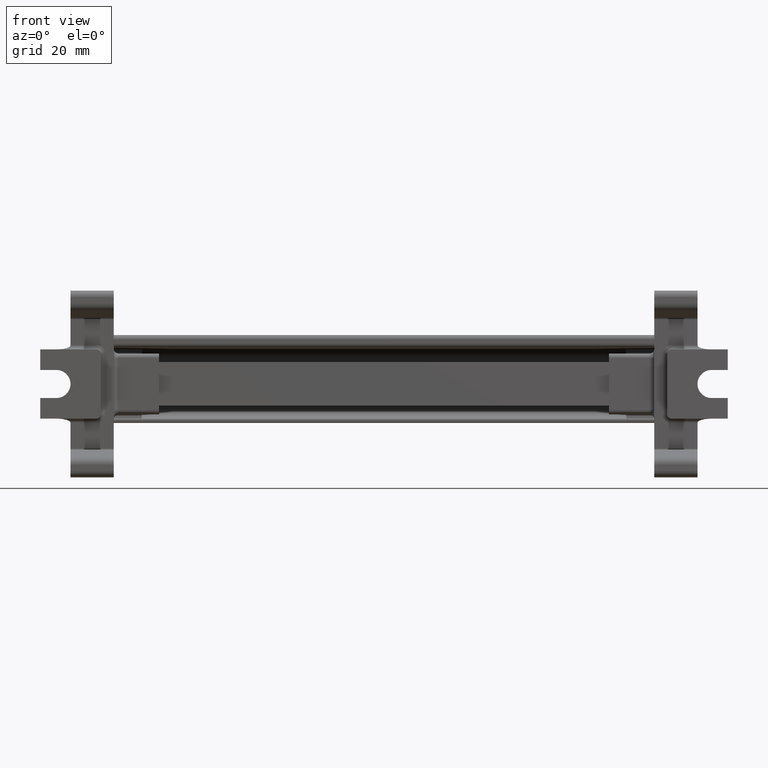
[diagram: clean part render]
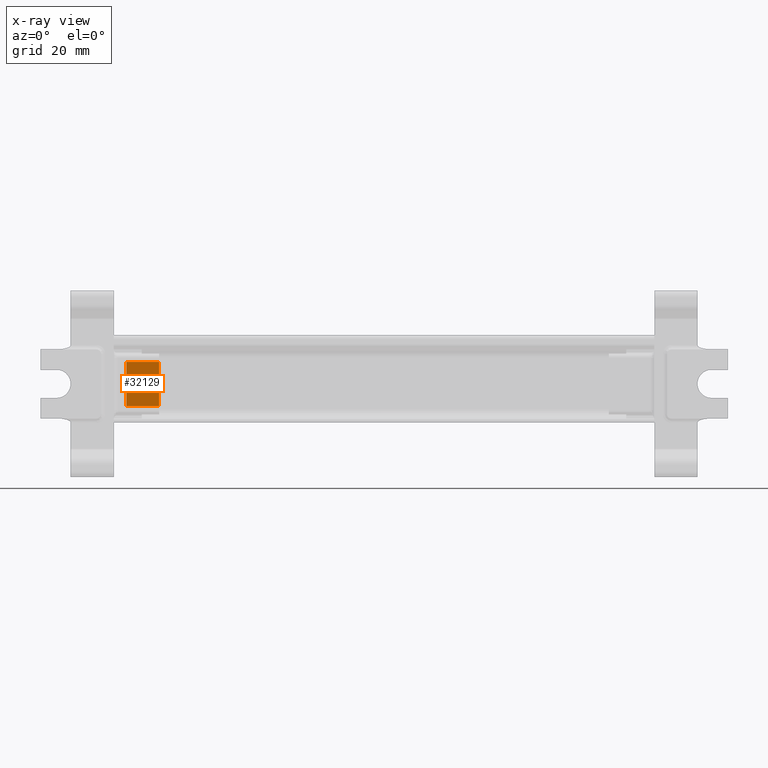
[diagram: x-ray — body ghosted, one internal face saturated and labeled with its STEP entity id]
A machine part, front view, then the same camera in x-ray: the body is ghosted and one INTERNAL B-rep face — a face not visible from any outside direction — is saturated and labeled: STEP entity #32129.
In plain terms, the highlighted planar face has unit normal (0, 1, -0).
Its self-contained STEP definition (entity closure, byte-faithful):
#350 = LINE ( 'NONE', #392, #14656 ) ;
#356 = CARTESIAN_POINT ( 'NONE',  ( -79.46331934428542400, 46.46882648293090100, 57.81335666716609700 ) ) ;
#357 = DIRECTION ( 'NONE',  ( 3.514663655315069800E-015, -5.575460396012712700E-029, -1.000000000000000000 ) ) ;
#364 = LINE ( 'NONE', #356, #14669 ) ;
#375 = DIRECTION ( 'NONE',  ( -2.318029420568694800E-017, 4.106110235624508500E-031, 1.000000000000000000 ) ) ;
#392 = CARTESIAN_POINT ( 'NONE',  ( -87.05269769582426400, 46.46882648293100700, 43.07764998369150100 ) ) ;
#537 = DIRECTION ( 'NONE',  ( 1.000000000000000000, 0.0000000000000000000, -7.071806681342200700E-016 ) ) ;
#541 = LINE ( 'NONE', #577, #14730 ) ;
#548 = LINE ( 'NONE', #576, #14719 ) ;
#554 = DIRECTION ( 'NONE',  ( -1.000000000000000000, 0.0000000000000000000, -7.729569084860471100E-015 ) ) ;
#576 = CARTESIAN_POINT ( 'NONE',  ( -65.05269769582425000, 46.46882648293100700, 32.98635869811145200 ) ) ;
#577 = CARTESIAN_POINT ( 'NONE',  ( -65.05269769582425000, 46.46882648293090100, 43.16894126927129300 ) ) ;
#4390 = EDGE_CURVE ( 'NONE', #32701, #32679, #364, .T. ) ;
#4395 = EDGE_CURVE ( 'NONE', #32661, #32678, #350, .T. ) ;
#4440 = EDGE_CURVE ( 'NONE', #32661, #32679, #548, .T. ) ;
#4442 = EDGE_CURVE ( 'NONE', #32701, #32678, #541, .T. ) ;
#5446 = ORIENTED_EDGE ( 'NONE', *, *, #4395, .T. ) ;
#5485 = ORIENTED_EDGE ( 'NONE', *, *, #4390, .T. ) ;
#5532 = ORIENTED_EDGE ( 'NONE', *, *, #4442, .F. ) ;
#5537 = ORIENTED_EDGE ( 'NONE', *, *, #4440, .F. ) ;
#14656 = VECTOR ( 'NONE', #375, 1000.000000000000000 ) ;
#14669 = VECTOR ( 'NONE', #357, 1000.000000000000000 ) ;
#14719 = VECTOR ( 'NONE', #537, 1000.000000000000000 ) ;
#14730 = VECTOR ( 'NONE', #554, 1000.000000000000000 ) ;
#16432 = EDGE_LOOP ( 'NONE', ( #5485, #5537, #5446, #5532 ) ) ;
#22935 = CARTESIAN_POINT ( 'NONE',  ( -87.05269769582425000, 46.46882648293101400, 32.98635869811145900 ) ) ;
#22940 = CARTESIAN_POINT ( 'NONE',  ( -87.05269769582427800, 46.46882648293093600, 43.16894126927112300 ) ) ;
#22944 = CARTESIAN_POINT ( 'NONE',  ( -79.46331934428535200, 46.46882648293090100, 43.16894126927120100 ) ) ;
#22990 = CARTESIAN_POINT ( 'NONE',  ( -79.46331934428533800, 46.46882648293093600, 32.98635869811145200 ) ) ;
#23158 = FACE_OUTER_BOUND ( 'NONE', #16432, .T. ) ;
#23164 = DIRECTION ( 'NONE',  ( 1.771379689657750100E-014, 1.000000000000000000, -6.844917884415865300E-029 ) ) ;
#23167 = DIRECTION ( 'NONE',  ( -1.000000000000000000, 1.771379689657750100E-014, 0.0000000000000000000 ) ) ;
#23169 = CARTESIAN_POINT ( 'NONE',  ( -57.05401174997805200, 46.46882648293050300, 33.07764998369154300 ) ) ;
#23191 = PLANE ( 'NONE',  #32523 ) ;
#32129 = ADVANCED_FACE ( 'NONE', ( #23158 ), #23191, .T. ) ;
#32523 = AXIS2_PLACEMENT_3D ( 'NONE', #23169, #23164, #23167 ) ;
#32661 = VERTEX_POINT ( 'NONE', #22935 ) ;
#32678 = VERTEX_POINT ( 'NONE', #22940 ) ;
#32679 = VERTEX_POINT ( 'NONE', #22990 ) ;
#32701 = VERTEX_POINT ( 'NONE', #22944 ) ;